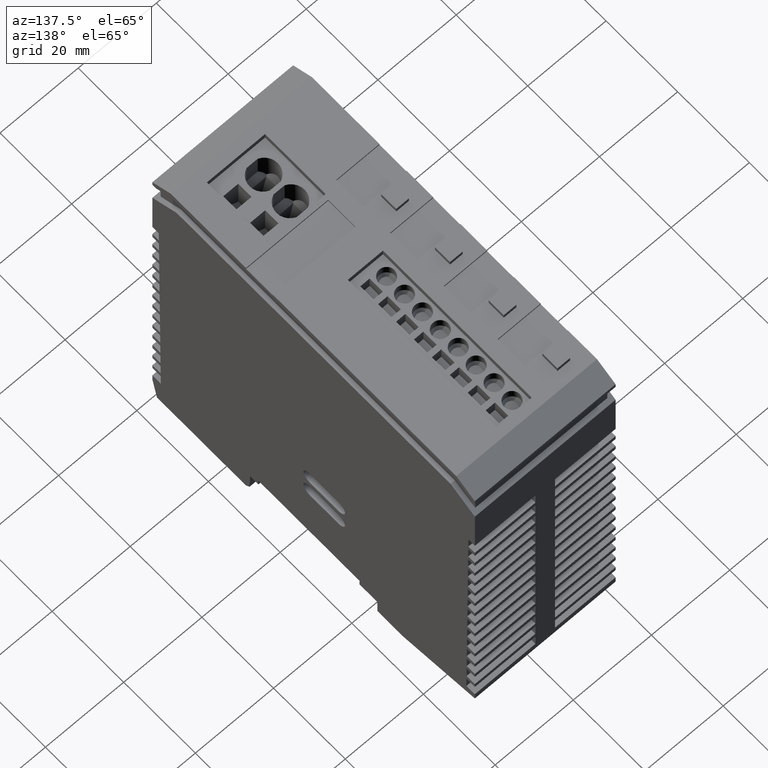
[diagram: clean part render]
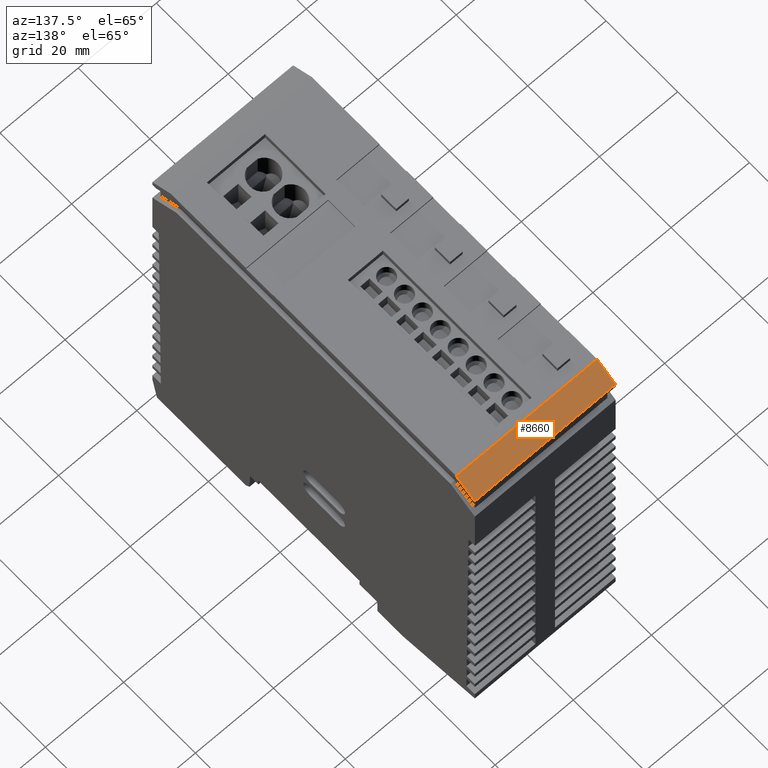
[diagram: same view with one face highlighted and labeled with its STEP entity id]
A machine part, auxiliary view. The second image highlights one B-rep face of the part: STEP entity #8660.
In plain terms, the highlighted planar face has unit normal (-0, 0.5, 0.866).
Its self-contained STEP definition (entity closure, byte-faithful):
#7840=CARTESIAN_POINT('',(1.00197533352632E-7,39.5038479473121,
91.0097431734668));
#7850=VERTEX_POINT('',#7840);
#7880=CARTESIAN_POINT('',(1.00197533352632E-7,39.5038479473121,
91.0097431734668));
#7890=DIRECTION('',(-1.,-1.02029843374857E-11,1.10352371112877E-9));
#7900=VECTOR('',#7890,1.);
#7910=LINE('',#7880,#7900);
#7920=CARTESIAN_POINT('',(36.0000001001975,39.5038479476794,
91.00974313374));
#7930=VERTEX_POINT('',#7920);
#7940=EDGE_CURVE('',#7930,#7850,#7910,.T.);
#8360=CARTESIAN_POINT('',(-0.499790479327024,37.4574609120537,
92.1912252797158));
#8370=DIRECTION('',(9.50578075341537E-10,0.500000000008835,
0.866025403779338));
#8380=DIRECTION('',(5.60597899204763E-10,-0.866025403779337,
0.500000000008835));
#8390=AXIS2_PLACEMENT_3D('',#8360,#8370,#8380);
#8400=PLANE('',#8390);
#8410=CARTESIAN_POINT('',(1.25963037790845E-7,-0.300000369608463,
113.990505714565));
#8420=DIRECTION('',(5.60588544278924E-10,-0.866025403779338,
0.500000000008835));
#8430=VECTOR('',#8420,1.);
#8440=LINE('',#8410,#8430);
#8450=CARTESIAN_POINT('',(9.68340023558539E-8,44.6999999545849,
88.009743413247));
#8460=VERTEX_POINT('',#8450);
#8470=EDGE_CURVE('',#8460,#7850,#8440,.T.);
#8480=ORIENTED_EDGE('',*,*,#8470,.T.);
#8490=CARTESIAN_POINT('',(9.6834002355854E-8,44.6999999545849,
88.009743413247));
#8500=DIRECTION('',(1.,1.01922142489611E-11,-1.10351749301527E-9));
#8510=VECTOR('',#8500,1.);
#8520=LINE('',#8490,#8510);
#8530=CARTESIAN_POINT('',(36.000000096834,44.6999999549518,
88.0097433735203));
#8540=VERTEX_POINT('',#8530);
#8550=EDGE_CURVE('',#8460,#8540,#8520,.T.);
#8560=ORIENTED_EDGE('',*,*,#8550,.F.);
#8570=CARTESIAN_POINT('',(36.000000125963,-0.300000369241544,
113.990505674839));
#8580=DIRECTION('',(-5.60588544278924E-10,0.866025403779338,
-0.500000000008835));
#8590=VECTOR('',#8580,1.);
#8600=LINE('',#8570,#8590);
#8610=EDGE_CURVE('',#7930,#8540,#8600,.T.);
#8620=ORIENTED_EDGE('',*,*,#8610,.T.);
#8630=ORIENTED_EDGE('',*,*,#7940,.F.);
#8640=EDGE_LOOP('',(#8630,#8620,#8560,#8480));
#8650=FACE_OUTER_BOUND('',#8640,.T.);
#8660=ADVANCED_FACE('',(#8650),#8400,.T.);